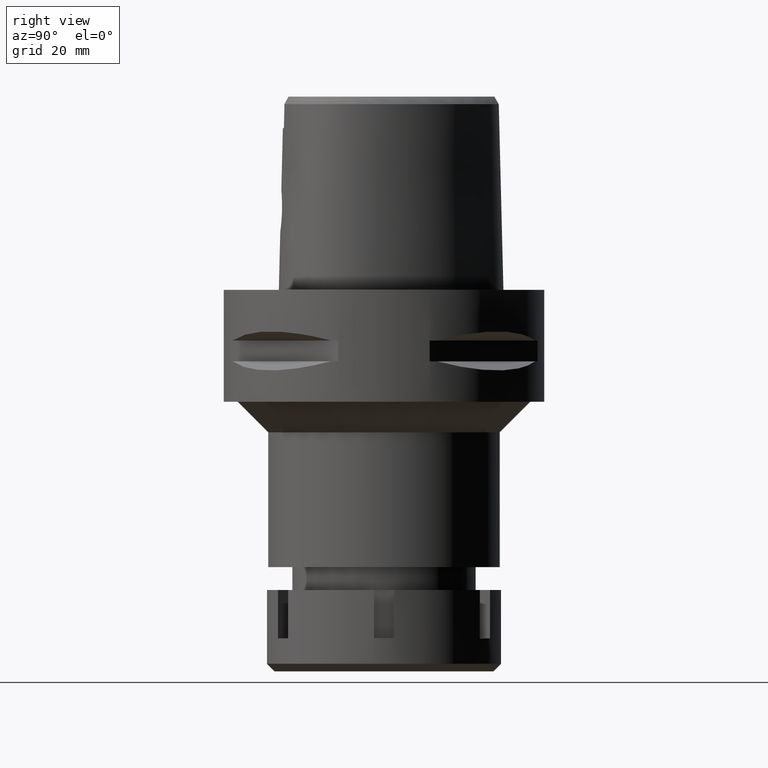
[diagram: clean part render]
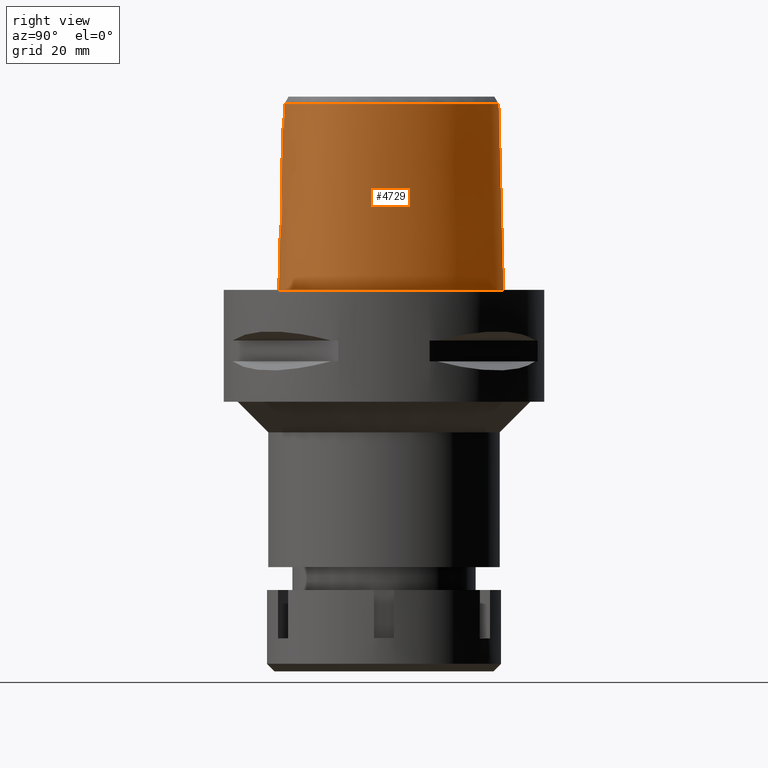
[diagram: same view with one face highlighted and labeled with its STEP entity id]
A machine part, right view. The second image highlights one B-rep face of the part: STEP entity #4729.
In plain terms, the highlighted face is a freeform B-spline surface patch.
Its self-contained STEP definition (entity closure, byte-faithful):
#48 = CARTESIAN_POINT ( 'NONE',  ( 2.041042029990999821E-08, -19.88004246002000031, 31.80000004972000127 ) ) ;
#51 = CARTESIAN_POINT ( 'NONE',  ( 3.736696120837999402, -19.67778323291999953, 31.80000004972999861 ) ) ;
#109 = CARTESIAN_POINT ( 'NONE',  ( -0.6718836835783000838, -20.05378850219000242, 24.59140259457000255 ) ) ;
#115 = CARTESIAN_POINT ( 'NONE',  ( 3.756125069740432476, -20.04745855932932841, 17.01462778956096145 ) ) ;
#136 = CARTESIAN_POINT ( 'NONE',  ( 11.13012655519999861, -18.61140115944000328, 11.93048244686999837 ) ) ;
#150 = CARTESIAN_POINT ( 'NONE',  ( 3.724651210502455179, -20.12894159340316591, 13.90953409638577121 ) ) ;
#175 = CARTESIAN_POINT ( 'NONE',  ( 3.923914256813788803, -20.09322795306330534, 14.46278330345411156 ) ) ;
#194 = CARTESIAN_POINT ( 'NONE',  ( 18.58171406625000088, -14.18198046587000150, -0.7304377008286999651 ) ) ;
#203 = CARTESIAN_POINT ( 'NONE',  ( 0.2513650938392851253, -20.38876923348000858, 11.44999999999999929 ) ) ;
#204 = CARTESIAN_POINT ( 'NONE',  ( 5.098437016805039690, 22.52602538943070343, 5.133892459372943473E-08 ) ) ;
#230 = CARTESIAN_POINT ( 'NONE',  ( 4.049385880667933257, -20.05442340995130834, 15.42296868718057823 ) ) ;
#252 = CARTESIAN_POINT ( 'NONE',  ( 21.68301101393999630, -0.3332744031559999875, 11.93048244686999837 ) ) ;
#276 = CARTESIAN_POINT ( 'NONE',  ( 21.05621900886999853, -0.4440251772015000320, 37.25232274225999873 ) ) ;
#282 = CARTESIAN_POINT ( 'NONE',  ( 2.297767253145089228, -20.12839387099592159, 18.84582622678342645 ) ) ;
#283 = CARTESIAN_POINT ( 'NONE',  ( 16.95889172514020871, -15.67838867086465626, 5.133892459372943473E-08 ) ) ;
#293 = CARTESIAN_POINT ( 'NONE',  ( 21.32871516740507545, -4.105831245034452515, 36.52186680739941949 ) ) ;
#297 = CARTESIAN_POINT ( 'NONE',  ( 20.65947747483999919, -8.729764350252001037, 37.25232274225999873 ) ) ;
#309 = CARTESIAN_POINT ( 'NONE',  ( 2.887537322029796183, -20.09730689105645141, 18.33983332488716655 ) ) ;
#331 = CARTESIAN_POINT ( 'NONE',  ( 4.868968416980999692, 21.95285536443999774, 24.59140259457000255 ) ) ;
#334 = B_SPLINE_SURFACE_WITH_KNOTS ( 'NONE', 3, 3, ( 
 ( #3956, #5184, #109, #612 ),
 ( #5235, #1467, #4775, #2301 ),
 ( #2324, #3980, #1833, #584 ),
 ( #3539, #3922, #2689, #5209 ),
 ( #2637, #136, #3518, #4719 ),
 ( #3128, #941, #2276, #3161 ),
 ( #1436, #1799, #1050, #4801 ),
 ( #194, #4310, #2754, #1023 ),
 ( #2728, #1885, #3566, #637 ),
 ( #4005, #3458, #1355, #3046 ),
 ( #2215, #3269, #1187, #1912 ),
 ( #3684, #5353, #3602, #297 ),
 ( #4082, #4478, #2406, #4936 ),
 ( #2354, #4961, #4884, #3189 ),
 ( #2778, #252, #4861, #276 ),
 ( #5273, #2886, #4554, #4444 ),
 ( #1987, #1939, #2428, #2809 ),
 ( #2861, #1549, #1104, #2836 ),
 ( #2383, #5296, #1078, #1164 ),
 ( #4527, #4115, #663, #1583 ),
 ( #744, #2020, #331, #3710 ),
 ( #5378, #3294, #776, #1607 ),
 ( #4502, #4912, #2467, #696 ),
 ( #4144, #1501, #4035, #4059 ),
 ( #3630, #3241, #1524, #3213 ) ),
 .UNSPECIFIED., .F., .F., .F.,
 ( 4, 1, 1, 1, 1, 1, 1, 1, 1, 1, 1, 1, 1, 1, 1, 1, 1, 1, 1, 1, 1, 1, 4 ),
 ( 4, 4 ),
 ( -0.008985960173607998938, 0.0000000000000000000, 0.08333333333346000515, 0.1666666666668000230, 0.2083333333334000115, 0.2500000000000000000, 0.2916666666666999919, 0.3125000000000000000, 0.3333333333333000081, 0.3541666666666999919, 0.3750000000000000000, 0.4166666666666999919, 0.4583333333332000326, 0.4999999999998999689, 0.5833333333332000326, 0.6666666666664999852, 0.7499999999998000488, 0.8333333333329999704, 0.8749999999997000177, 0.9166666666664000651, 0.9583333333329999704, 1.000000000000000000, 1.011710456763000199 ),
 ( 6.440578730059999579E-10, 0.9999999671531000223 ),
 .UNSPECIFIED. ) ;
#362 = CARTESIAN_POINT ( 'NONE',  ( 1.682408467858886869, -20.15487676905641834, 19.18421676572807044 ) ) ;
#529 = CARTESIAN_POINT ( 'NONE',  ( 3.671249151389730514, -19.60525176641679579, 34.94790639287000289 ) ) ;
#542 = CARTESIAN_POINT ( 'NONE',  ( 3.834132764128479476, -20.04413983231402341, 16.80766172510447021 ) ) ;
#564 = CARTESIAN_POINT ( 'NONE',  ( 3.733615223647793524, -20.12743432469296678, 13.93072684949311935 ) ) ;
#584 = CARTESIAN_POINT ( 'NONE',  ( 1.836480378976999894, -19.76356513466000209, 37.25232274225999873 ) ) ;
#595 = CARTESIAN_POINT ( 'NONE',  ( 2.711812544928954072, -20.25803428398867112, 12.49166772637832423 ) ) ;
#596 = CARTESIAN_POINT ( 'NONE',  ( 6.589911981476000638E-11, 23.47499999998000320, 1.563934167354999746E-13 ) ) ;
#605 = VERTEX_POINT ( 'NONE', #2716 ) ;
#612 = CARTESIAN_POINT ( 'NONE',  ( -0.6657939535483999860, -19.73734217107000433, 37.25232274225999873 ) ) ;
#619 = CARTESIAN_POINT ( 'NONE',  ( 2.841481942229118207, -20.24471504979698722, 12.61408493279074605 ) ) ;
#634 = ORIENTED_EDGE ( 'NONE', *, *, #2320, .T. ) ;
#637 = CARTESIAN_POINT ( 'NONE',  ( 18.89485276765000066, -12.27684372565000004, 37.25232274225999873 ) ) ;
#647 = CARTESIAN_POINT ( 'NONE',  ( 4.037288619571372195, -20.06218911274252648, 15.17308089514829206 ) ) ;
#648 = CARTESIAN_POINT ( 'NONE',  ( 10.74572890975553108, 19.17433593651194101, 5.133892459372943473E-08 ) ) ;
#663 = CARTESIAN_POINT ( 'NONE',  ( 7.259695429848000536, 20.78233563342000068, 24.59140259457000255 ) ) ;
#672 = EDGE_CURVE ( 'NONE', #877, #4105, #3674, .T. ) ;
#677 = CARTESIAN_POINT ( 'NONE',  ( 1.721395865009925696, -20.15335272691875801, 19.16627522895259617 ) ) ;
#696 = CARTESIAN_POINT ( 'NONE',  ( 0.5662264553953000323, 22.56729408688000049, 37.25232274225999873 ) ) ;
#704 = CARTESIAN_POINT ( 'NONE',  ( 1.850273374751005173, -20.14815026262819586, 19.10390060250088240 ) ) ;
#709 = B_SPLINE_CURVE_WITH_KNOTS ( 'NONE', 3,
 ( #4689, #5017, #5066, #48 ),
 .UNSPECIFIED., .F., .F.,
 ( 4, 4 ),
 ( 0.0000000000000000000, 1.000000000000000000 ),
 .UNSPECIFIED. ) ;
#717 = CARTESIAN_POINT ( 'NONE',  ( 18.90964962507554148, -12.28759713487851357, 36.52186680739941949 ) ) ;
#744 = CARTESIAN_POINT ( 'NONE',  ( 5.105252916302999822, 22.54305024289000059, -0.7304377008286999651 ) ) ;
#773 = VECTOR ( 'NONE', #1744, 1000.000000000000114 ) ;
#776 = CARTESIAN_POINT ( 'NONE',  ( 2.438150602943999878, 22.68791639090999723, 24.59140259457000255 ) ) ;
#877 = VERTEX_POINT ( 'NONE', #4328 ) ;
#941 = CARTESIAN_POINT ( 'NONE',  ( 14.52531263227000125, -16.95413748094000184, 11.93048244686999837 ) ) ;
#951 = CARTESIAN_POINT ( 'NONE',  ( 2.755157824600158900, -20.25369729349148429, 12.53110329712655435 ) ) ;
#975 = CARTESIAN_POINT ( 'NONE',  ( 0.5088336983802317359, -20.38532934153255383, 11.47346924504332222 ) ) ;
#1000 = CARTESIAN_POINT ( 'NONE',  ( 2.625054034762084765, -20.26654247664009034, 12.41494688798221091 ) ) ;
#1001 = CARTESIAN_POINT ( 'NONE',  ( 0.8548392422176173122, 23.47499999872449195, 5.133892459372943473E-08 ) ) ;
#1023 = CARTESIAN_POINT ( 'NONE',  ( 17.88993649464000057, -13.52675014675000043, 37.25232274225999873 ) ) ;
#1050 = CARTESIAN_POINT ( 'NONE',  ( 16.57726034767999934, -15.19304462892000096, 24.59140259457000255 ) ) ;
#1059 = CARTESIAN_POINT ( 'NONE',  ( 1.219914642302581287, -20.36297004387411391, 11.63750816716895642 ) ) ;
#1060 = CARTESIAN_POINT ( 'NONE',  ( 20.74942740758246984, 4.657187499561644906, 5.133892459372943473E-08 ) ) ;
#1078 = CARTESIAN_POINT ( 'NONE',  ( 10.34823237111999994, 18.70095498303999904, 24.59140259457000255 ) ) ;
#1086 = CARTESIAN_POINT ( 'NONE',  ( 3.275683108857316839, -20.07467505300561328, 17.88618377728968412 ) ) ;
#1087 = CARTESIAN_POINT ( 'NONE',  ( 21.97832647659170746, -0.2810937502245363095, 5.133892459372943473E-08 ) ) ;
#1104 = CARTESIAN_POINT ( 'NONE',  ( 13.93560865100999990, 15.24203790339999998, 24.59140259457000255 ) ) ;
#1121 = CARTESIAN_POINT ( 'NONE',  ( 2.905045300906295314, -20.09630101413479863, 18.32194731706497848 ) ) ;
#1136 = CARTESIAN_POINT ( 'NONE',  ( 0.7901461619530777414, 22.56201467849585640, 36.52186680739941949 ) ) ;
#1147 = CARTESIAN_POINT ( 'NONE',  ( 1.557547252386892289, -20.15944608752165834, 19.23852208297606481 ) ) ;
#1164 = CARTESIAN_POINT ( 'NONE',  ( 10.14358068742999919, 18.45723409560000050, 37.25232274225999873 ) ) ;
#1181 = CARTESIAN_POINT ( 'NONE',  ( 21.07429999882542404, -0.4408303635841513968, 36.52186680739941949 ) ) ;
#1187 = CARTESIAN_POINT ( 'NONE',  ( 20.36913770872000029, -10.35391841985999939, 24.59140259457000255 ) ) ;
#1197 = CARTESIAN_POINT ( 'NONE',  ( 0.4959045370077673764, -20.18628283969000492, 19.55000000000000071 ) ) ;
#1319 = VERTEX_POINT ( 'NONE', #3219 ) ;
#1349 = ORIENTED_EDGE ( 'NONE', *, *, #3805, .T. ) ;
#1355 = CARTESIAN_POINT ( 'NONE',  ( 19.81622823152000024, -11.44090470262000103, 24.59140259457000255 ) ) ;
#1396 = CARTESIAN_POINT ( 'NONE',  ( 1.026284908630525017, -20.37070980075587912, 11.57987514751378022 ) ) ;
#1419 = CARTESIAN_POINT ( 'NONE',  ( 3.544951685465134616, -20.15795908864563657, 13.53703058126424175 ) ) ;
#1436 = CARTESIAN_POINT ( 'NONE',  ( 16.97022731142999774, -15.69280483157000106, -0.7304377008286999651 ) ) ;
#1443 = CARTESIAN_POINT ( 'NONE',  ( 3.597776363771562291, -20.14975664647577247, 13.63784956183695485 ) ) ;
#1467 = CARTESIAN_POINT ( 'NONE',  ( -0.4520500670016999734, -20.37458447015999852, 11.93048244686999837 ) ) ;
#1483 = CARTESIAN_POINT ( 'NONE',  ( 4.047733528286863169, -20.05618573902189183, 15.36102835652594933 ) ) ;
#1501 = CARTESIAN_POINT ( 'NONE',  ( -0.4685451964167999805, 23.16976073745999898, 11.93048244686999837 ) ) ;
#1507 = CARTESIAN_POINT ( 'NONE',  ( 4.027814664727853433, -20.04259081693787792, 15.99899074095372598 ) ) ;
#1524 = CARTESIAN_POINT ( 'NONE',  ( -0.6834384068752999974, 22.83968691451999788, 24.59140259457000255 ) ) ;
#1531 = CARTESIAN_POINT ( 'NONE',  ( 2.583846531388557466, -20.11473364791429219, 18.64711139484315794 ) ) ;
#1532 = CARTESIAN_POINT ( 'NONE',  ( 18.06826688415234727, 10.43171874935659282, 5.133892459372943473E-08 ) ) ;
#1549 = CARTESIAN_POINT ( 'NONE',  ( 14.17879758571999993, 15.44741195313000048, 11.93048244686999837 ) ) ;
#1578 = CARTESIAN_POINT ( 'NONE',  ( 2.376843874103966581, 22.39422497744399720, 36.52186680739941949 ) ) ;
#1583 = CARTESIAN_POINT ( 'NONE',  ( 7.099337724559000584, 20.50831381844000134, 37.25232274225999873 ) ) ;
#1607 = CARTESIAN_POINT ( 'NONE',  ( 2.373090301473000263, 22.37624339415000208, 37.25232274225999873 ) ) ;
#1616 = CARTESIAN_POINT ( 'NONE',  ( 2.894554313917291122, -20.09690386000385232, 18.33268078382254629 ) ) ;
#1661 = CARTESIAN_POINT ( 'NONE',  ( 3.637738219117000238, -19.56971420299000286, 36.52185956443999970 ) ) ;
#1675 = CARTESIAN_POINT ( 'NONE',  ( -1.479165636536000032E-11, 22.56201468012000078, 36.52186680743999858 ) ) ;
#1744 = DIRECTION ( 'NONE',  ( -1.018537051611978047E-12, -0.02499051295360945474, -0.9996876883618780463 ) ) ;
#1799 = CARTESIAN_POINT ( 'NONE',  ( 16.77374382954999987, -15.44292473024000145, 11.93048244686999837 ) ) ;
#1806 = CARTESIAN_POINT ( 'NONE',  ( -1.661817726879000115E-12, -20.38876923348000147, 11.44999999999999929 ) ) ;
#1833 = CARTESIAN_POINT ( 'NONE',  ( 1.853272120416999957, -20.08023982175000199, 24.59140259457000255 ) ) ;
#1841 = CARTESIAN_POINT ( 'NONE',  ( 3.734182928955680492, -20.12733899257112569, 13.93207690736386262 ) ) ;
#1866 = CARTESIAN_POINT ( 'NONE',  ( 3.771924749575209290, -20.04673734607103697, 16.97498912667927584 ) ) ;
#1885 = CARTESIAN_POINT ( 'NONE',  ( 19.40779768701000307, -12.64961927324999991, 11.93048244686999837 ) ) ;
#1893 = CARTESIAN_POINT ( 'NONE',  ( 1.508548257805977011, -20.34919367973690640, 11.74142899467713974 ) ) ;
#1912 = CARTESIAN_POINT ( 'NONE',  ( 20.07948493349999808, -10.22500064467999970, 37.25232274225999873 ) ) ;
#1923 = CARTESIAN_POINT ( 'NONE',  ( 4.049847950762889504, -20.05362044738917504, 15.45260355635274330 ) ) ;
#1924 = CARTESIAN_POINT ( 'NONE',  ( 22.24453907726493895, -4.100468750007731700, 5.133892459372943473E-08 ) ) ;
#1939 = CARTESIAN_POINT ( 'NONE',  ( 17.80867307855000092, 10.28184208416000089, 11.93048244686999837 ) ) ;
#1946 = CARTESIAN_POINT ( 'NONE',  ( 1.559206937745068355, -20.15938941025294895, 19.23783019057918864 ) ) ;
#1968 = CARTESIAN_POINT ( 'NONE',  ( 0.0000000000000000000, -20.18628283968999781, 19.55000000000000071 ) ) ;
#1969 = CARTESIAN_POINT ( 'NONE',  ( 21.55524825886109141, -8.996025390257862853, 5.133892459372943473E-08 ) ) ;
#1981 = CARTESIAN_POINT ( 'NONE',  ( 4.467522181836776518, -19.48130276147466233, 36.52186680739941949 ) ) ;
#1987 = CARTESIAN_POINT ( 'NONE',  ( 18.08416038364000045, 10.44089487240000125, -0.7304377008286999651 ) ) ;
#2005 = ORIENTED_EDGE ( 'NONE', *, *, #672, .F. ) ;
#2020 = CARTESIAN_POINT ( 'NONE',  ( 4.987110666642000645, 22.24795280366999961, 11.93048244686999837 ) ) ;
#2027 = CARTESIAN_POINT ( 'NONE',  ( 1.630204615553382030, -20.15684766332410049, 19.20746487088241494 ) ) ;
#2039 = ORIENTED_EDGE ( 'NONE', *, *, #2740, .T. ) ;
#2050 = CARTESIAN_POINT ( 'NONE',  ( 3.752145809978453261, -20.04764366482260485, 17.02444873848520146 ) ) ;
#2215 = CARTESIAN_POINT ( 'NONE',  ( 20.94844325915000027, -10.61175397020000055, -0.7304377008286999651 ) ) ;
#2223 = CARTESIAN_POINT ( 'NONE',  ( 3.729962682284081676, -20.12804796780253369, 13.92205712544189211 ) ) ;
#2248 = CARTESIAN_POINT ( 'NONE',  ( 3.734333138693371801, -20.12731381197719571, 13.93243600819205064 ) ) ;
#2276 = CARTESIAN_POINT ( 'NONE',  ( 14.36818029308999911, -16.67825723111999991, 24.59140259457000255 ) ) ;
#2284 = CARTESIAN_POINT ( 'NONE',  ( 3.732532274748376899, -20.12761616597926917, 13.92815111045840837 ) ) ;
#2285 = CARTESIAN_POINT ( 'NONE',  ( 14.40795638859523642, 15.64093749916761666, 5.133892459372943473E-08 ) ) ;
#2301 = CARTESIAN_POINT ( 'NONE',  ( -0.4439347110420999720, -19.74161829701999693, 37.25232274225999873 ) ) ;
#2308 = CARTESIAN_POINT ( 'NONE',  ( 3.146977187969050238, -20.21214664850908349, 12.91782310681126944 ) ) ;
#2309 = CARTESIAN_POINT ( 'NONE',  ( 20.34961798445548453, -11.74885742122440035, 5.133892459372943473E-08 ) ) ;
#2320 = EDGE_CURVE ( 'NONE', #877, #3575, #2729, .T. ) ;
#2324 = CARTESIAN_POINT ( 'NONE',  ( 1.886855603297000084, -20.71358919592000092, -0.7304377008286999651 ) ) ;
#2327 = CARTESIAN_POINT ( 'NONE',  ( 6.589911981476000638E-11, 23.47499999998000320, 1.563934167354999746E-13 ) ) ;
#2333 = CARTESIAN_POINT ( 'NONE',  ( 4.044176424623040944, -20.05897250992953929, 15.26767728055138562 ) ) ;
#2354 = CARTESIAN_POINT ( 'NONE',  ( 22.26285556591999892, -4.100361500045999641, -0.7304377008286999651 ) ) ;
#2368 = CARTESIAN_POINT ( 'NONE',  ( 20.93173252094357295, -10.60431640572513423, 5.133892459372943473E-08 ) ) ;
#2383 = CARTESIAN_POINT ( 'NONE',  ( 10.75753573849000055, 19.18839675793000055, -0.7304377008286999651 ) ) ;
#2390 = CARTESIAN_POINT ( 'NONE',  ( 2.976801586316417225, -20.09216442783355205, 18.24660956151145896 ) ) ;
#2401 = CARTESIAN_POINT ( 'NONE',  ( 4.757642236485272846, 21.67478320247679591, 36.52186680739941949 ) ) ;
#2406 = CARTESIAN_POINT ( 'NONE',  ( 21.44619294638000184, -6.759806552775999400, 24.59140259457000255 ) ) ;
#2428 = CARTESIAN_POINT ( 'NONE',  ( 17.53318577346000140, 10.12278929592000054, 24.59140259457000255 ) ) ;
#2446 = CARTESIAN_POINT ( 'NONE',  ( 3.355528582519450520, -20.06993180122963949, 17.77165886435511055 ) ) ;
#2462 = CARTESIAN_POINT ( 'NONE',  ( 20.67704204634065590, -8.734985285292969692, 36.52186680739941949 ) ) ;
#2467 = CARTESIAN_POINT ( 'NONE',  ( 0.5826623282862999353, 22.88447438393999889, 24.59140259457000255 ) ) ;
#2474 = CARTESIAN_POINT ( 'NONE',  ( 1.567636234854285826, -20.15909966307800971, 19.23430590123704675 ) ) ;
#2582 = CARTESIAN_POINT ( 'NONE',  ( 0.0000000000000000000, -20.18628283968999781, 19.55000000000000071 ) ) ;
#2630 = EDGE_LOOP ( 'NONE', ( #2005, #634, #3157, #4713, #1349, #2790, #2039, #5398 ) ) ;
#2635 = B_SPLINE_CURVE_WITH_KNOTS ( 'NONE', 3,
 ( #1806, #203, #975, #4844, #1396, #1059, #5166, #5280, #3936, #1893, #4427, #4402, #3524, #3171, #3549, #4373, #4782, #1000, #595, #951, #2670, #2737, #619, #3576, #4760, #2308, #2762, #1419, #1443, #3989, #2646, #4341, #4014, #150, #2223, #2284, #564, #2248, #1841, #3963, #175, #3497, #5252, #647, #2333, #1483, #230, #1923, #3612, #1507, #5217, #3196, #4317, #542, #3906, #1866, #4817, #115, #2050, #3661, #3694, #2446, #1086, #5385, #4454, #5330, #2390, #4486, #1121, #1616, #309, #2844, #1531, #282, #4969, #704, #677, #362, #2027, #4065, #3300, #2474, #4152, #1946, #1147, #4943, #3222, #1197, #1968 ),
 .UNSPECIFIED., .F., .F.,
 ( 4, 2, 2, 1, 1, 1, 2, 2, 2, 2, 2, 1, 1, 1, 2, 2, 2, 2, 2, 1, 1, 1, 1, 2, 2, 2, 2, 1, 2, 2, 2, 2, 1, 1, 1, 2, 2, 2, 2, 2, 1, 1, 1, 2, 2, 2, 2, 2, 1, 1, 1, 1, 2, 2, 4 ),
 ( 0.0000000000000000000, 0.06250000000000002776, 0.09375000000000008327, 0.1093750000000001804, 0.1171875000000001388, 0.1210937500000001943, 0.1230468750000002359, 0.1250000000000002776, 0.1875000000000045519, 0.2187500000000067724, 0.2343750000000078826, 0.2421875000000085487, 0.2460937500000087430, 0.2480468750000087985, 0.2490234375000088540, 0.2500000000000089373, 0.3125000000000145994, 0.3437500000000172640, 0.3593750000000186517, 0.3671875000000193734, 0.3710937500000196509, 0.3730468750000194289, 0.3740234375000197065, 0.3745117187500194289, 0.3750000000000191513, 0.4375000000000066058, 0.4687500000000003331, 0.4843749999999973910, 0.4921874999999957256, 0.4999999999999940603, 0.5624999999999826805, 0.5937499999999770184, 0.6093749999999737987, 0.6171874999999722444, 0.6210937499999714673, 0.6230468749999714673, 0.6249999999999714673, 0.6874999999999700240, 0.7187499999999695799, 0.7343749999999696909, 0.7421874999999698019, 0.7460937499999700240, 0.7480468749999701350, 0.7490234374999704681, 0.7499999999999708011, 0.8124999999999867883, 0.8437499999999950040, 0.8593749999999994449, 0.8671875000000015543, 0.8710937500000023315, 0.8730468750000027756, 0.8740234375000029976, 0.8745117187500027756, 0.8750000000000026645, 1.000000000000000000 ),
 .UNSPECIFIED. ) ;
#2637 = CARTESIAN_POINT ( 'NONE',  ( 11.23887130271000068, -18.91049776063999843, -0.7304377008286999651 ) ) ;
#2646 = CARTESIAN_POINT ( 'NONE',  ( 3.678695920905383776, -20.13664559938962029, 13.80554397062563510 ) ) ;
#2670 = CARTESIAN_POINT ( 'NONE',  ( 2.805565869585526340, -20.24849240644470783, 12.57904116348529122 ) ) ;
#2689 = CARTESIAN_POINT ( 'NONE',  ( 6.232237580706000202, -19.68961177691000231, 24.59140259457000255 ) ) ;
#2702 = CARTESIAN_POINT ( 'NONE',  ( 3.637738219117000238, -19.56971420299000286, 36.52185956443999970 ) ) ;
#2716 = CARTESIAN_POINT ( 'NONE',  ( -1.661817726879000115E-12, -20.38876923348000147, 11.44999999999999929 ) ) ;
#2728 = CARTESIAN_POINT ( 'NONE',  ( 19.66427014668999718, -12.83600704704999984, -0.7304377008286999651 ) ) ;
#2729 = B_SPLINE_CURVE_WITH_KNOTS ( 'NONE', 3,
 ( #4078, #1136, #1578, #2401, #3264, #2909, #5315, #4548, #4954, #1181, #293, #4931, #2462, #5347, #3679, #717, #2832, #4907, #5397, #4108, #2856, #1981, #4473 ),
 .UNSPECIFIED., .F., .F.,
 ( 4, 1, 1, 1, 1, 1, 1, 1, 1, 1, 1, 1, 1, 1, 1, 1, 1, 1, 1, 1, 4 ),
 ( 0.0000000000000000000, 0.04382683003322353915, 0.08765366006602620663, 0.1314804900989341996, 0.1753073201318422203, 0.2629609801974476802, 0.3506146402631584724, 0.4382683003288690982, 0.5259219603945799459, 0.5697487904274878279, 0.6135756204601853225, 0.6574024504930933155, 0.6793158655094947429, 0.7012292805260014195, 0.7231426955424027359, 0.7450561105588040522, 0.7888829405917120452, 0.8327097706245147890, 0.8765366006573176438, 0.9641902607230703470, 1.000000000000000000 ),
 .UNSPECIFIED. ) ;
#2737 = CARTESIAN_POINT ( 'NONE',  ( 2.830716186925087197, -20.24585369672130142, 12.60349817413593065 ) ) ;
#2740 = EDGE_CURVE ( 'NONE', #605, #5313, #4226, .T. ) ;
#2754 = CARTESIAN_POINT ( 'NONE',  ( 18.12052901851000186, -13.74516025311999989, 24.59140259457000255 ) ) ;
#2762 = CARTESIAN_POINT ( 'NONE',  ( 3.341890037418641324, -20.18695819815992110, 13.19695928336088642 ) ) ;
#2778 = CARTESIAN_POINT ( 'NONE',  ( 21.99640701646999830, -0.2778990161332999809, -0.7304377008286999651 ) ) ;
#2790 = ORIENTED_EDGE ( 'NONE', *, *, #3591, .F. ) ;
#2809 = CARTESIAN_POINT ( 'NONE',  ( 17.25769846836999832, 9.963736507676001608, 37.25232274225999873 ) ) ;
#2832 = CARTESIAN_POINT ( 'NONE',  ( 17.90324024157390426, -13.53935104436017589, 36.52186680739941949 ) ) ;
#2836 = CARTESIAN_POINT ( 'NONE',  ( 13.69241971630000165, 15.03666385365999858, 37.25232274225999873 ) ) ;
#2844 = CARTESIAN_POINT ( 'NONE',  ( 2.885120786806667947, -20.09744565367676472, 18.34229159665168041 ) ) ;
#2856 = CARTESIAN_POINT ( 'NONE',  ( 7.300578979385020872, -19.07170738130598409, 36.52186680739941949 ) ) ;
#2861 = CARTESIAN_POINT ( 'NONE',  ( 14.42198652042999818, 15.65278600286999833, -0.7304377008286999651 ) ) ;
#2886 = CARTESIAN_POINT ( 'NONE',  ( 20.46725044168999830, 4.555493648461999889, 11.93048244686999837 ) ) ;
#2909 = CARTESIAN_POINT ( 'NONE',  ( 10.15538781007090918, 18.47129526703172075, 36.52186680739941949 ) ) ;
#2925 = CARTESIAN_POINT ( 'NONE',  ( 0.0000000000000000000, -20.18628283968999781, 19.55000000000000071 ) ) ;
#2929 = EDGE_CURVE ( 'NONE', #4841, #3575, #3227, .T. ) ;
#2934 = CARTESIAN_POINT ( 'NONE',  ( 3.736696120837999402, -19.67778323291999953, 31.80000004972999861 ) ) ;
#3046 = CARTESIAN_POINT ( 'NONE',  ( 19.54161172449000006, -11.28235478775999923, 37.25232274225999873 ) ) ;
#3081 = FACE_OUTER_BOUND ( 'NONE', #2630, .T. ) ;
#3128 = CARTESIAN_POINT ( 'NONE',  ( 14.68244497146000072, -17.23001773076000021, -0.7304377008286999651 ) ) ;
#3157 = ORIENTED_EDGE ( 'NONE', *, *, #2929, .F. ) ;
#3161 = CARTESIAN_POINT ( 'NONE',  ( 14.21104795389999964, -16.40237698131000244, 37.25232274225999873 ) ) ;
#3171 = CARTESIAN_POINT ( 'NONE',  ( 1.943634177109568872, -20.32333441053194178, 11.93700115265083284 ) ) ;
#3189 = CARTESIAN_POINT ( 'NONE',  ( 21.31039822279999996, -4.105938497665999165, 37.25232274225999873 ) ) ;
#3196 = CARTESIAN_POINT ( 'NONE',  ( 3.922298745474660731, -20.04161990539563831, 16.51790891224319680 ) ) ;
#3197 = CARTESIAN_POINT ( 'NONE',  ( 19.64947365759156384, -12.82525390549806232, 5.133892459372943473E-08 ) ) ;
#3213 = CARTESIAN_POINT ( 'NONE',  ( -0.6642815279115000804, 22.52377637804000088, 37.25232274225999873 ) ) ;
#3219 = CARTESIAN_POINT ( 'NONE',  ( 2.041042029990999821E-08, -19.88004246002000031, 31.80000004972000127 ) ) ;
#3222 = CARTESIAN_POINT ( 'NONE',  ( 1.030807136769457344, -20.17735594286867595, 19.45770120352410260 ) ) ;
#3227 = B_SPLINE_CURVE_WITH_KNOTS ( 'NONE', 3,
 ( #51, #3429, #529, #1661 ),
 .UNSPECIFIED., .F., .F.,
 ( 4, 4 ),
 ( 0.0000000000000000000, 1.000000000000000000 ),
 .UNSPECIFIED. ) ;
#3241 = CARTESIAN_POINT ( 'NONE',  ( -0.7025952858392000566, 23.15559745100999578, 11.93048244686999837 ) ) ;
#3264 = CARTESIAN_POINT ( 'NONE',  ( 7.108589361577683619, 20.52412316394557124, 36.52186680739941949 ) ) ;
#3269 = CARTESIAN_POINT ( 'NONE',  ( 20.65879048393000161, -10.48283619503000175, 11.93048244686999837 ) ) ;
#3294 = CARTESIAN_POINT ( 'NONE',  ( 2.503210904416000027, 22.99958938766999950, 11.93048244686999837 ) ) ;
#3300 = CARTESIAN_POINT ( 'NONE',  ( 1.579844284323532078, -20.15867419586153275, 19.22916814255610518 ) ) ;
#3429 = CARTESIAN_POINT ( 'NONE',  ( 3.704239288984441103, -19.64128042389065598, 33.37395322129999897 ) ) ;
#3458 = CARTESIAN_POINT ( 'NONE',  ( 20.09084473856000130, -11.59945461747999929, 11.93048244686999837 ) ) ;
#3497 = CARTESIAN_POINT ( 'NONE',  ( 4.000259687173843837, -20.07463044974041111, 14.85344928445107016 ) ) ;
#3518 = CARTESIAN_POINT ( 'NONE',  ( 11.02138180768000097, -18.31230455823999748, 24.59140259457000255 ) ) ;
#3524 = CARTESIAN_POINT ( 'NONE',  ( 1.731224800536398600, -20.33718087931255880, 11.83285799100799096 ) ) ;
#3539 = CARTESIAN_POINT ( 'NONE',  ( 6.344715576791000622, -20.31619965019000063, -0.7304377008286999651 ) ) ;
#3545 = B_SPLINE_CURVE_WITH_KNOTS ( 'NONE', 3,
 ( #3964, #4845, #4428, #4374, #4066, #283, #3550, #3197, #2309, #2368, #1969, #5218, #1924, #1087, #1060, #1532, #2285, #648, #3990, #204, #4893, #1001, #596 ),
 .UNSPECIFIED., .F., .F.,
 ( 4, 1, 1, 1, 1, 1, 1, 1, 1, 1, 1, 1, 1, 1, 1, 1, 1, 1, 1, 1, 4 ),
 ( 0.0000000000000000000, 0.08333333333346000515, 0.1666666666668000230, 0.2083333333334000115, 0.2500000000000000000, 0.2916666666666999919, 0.3125000000000000000, 0.3333333333333000081, 0.3541666666666999919, 0.3750000000000000000, 0.4166666666666999919, 0.4583333333332000326, 0.4999999999998999689, 0.5833333333332000326, 0.6666666666664999852, 0.7499999999998000488, 0.8333333333329999704, 0.8749999999997000177, 0.9166666666664000651, 0.9583333333329999704, 1.000000000000000000 ),
 .UNSPECIFIED. ) ;
#3549 = CARTESIAN_POINT ( 'NONE',  ( 2.279301188943401613, -20.29725948038710115, 12.14965229562047533 ) ) ;
#3550 = CARTESIAN_POINT ( 'NONE',  ( 18.56841065047631645, -14.16937988192455045, 5.133892459372943473E-08 ) ) ;
#3566 = CARTESIAN_POINT ( 'NONE',  ( 19.15132522733000187, -12.46323149944999997, 24.59140259457000255 ) ) ;
#3575 = VERTEX_POINT ( 'NONE', #2702 ) ;
#3576 = CARTESIAN_POINT ( 'NONE',  ( 2.848656072139268414, -20.24395422488552754, 12.62116621080277845 ) ) ;
#3591 = EDGE_CURVE ( 'NONE', #605, #5251, #2635, .T. ) ;
#3602 = CARTESIAN_POINT ( 'NONE',  ( 20.96392244760999901, -8.820258298614000125, 24.59140259457000255 ) ) ;
#3612 = CARTESIAN_POINT ( 'NONE',  ( 4.050948068489438114, -20.04627564452905375, 15.73931143976857783 ) ) ;
#3630 = CARTESIAN_POINT ( 'NONE',  ( -0.7217521648029999737, 23.47150798749000344, -0.7304377008286999651 ) ) ;
#3661 = CARTESIAN_POINT ( 'NONE',  ( 3.671197993484472288, -20.05144012297616385, 17.22277455147500902 ) ) ;
#3674 = LINE ( 'NONE', #1675, #4987 ) ;
#3679 = CARTESIAN_POINT ( 'NONE',  ( 19.55745538000878625, -11.29150212657346231, 36.52186680739941949 ) ) ;
#3684 = CARTESIAN_POINT ( 'NONE',  ( 21.57281239314000132, -9.001246195337998302, -0.7304377008286999651 ) ) ;
#3694 = CARTESIAN_POINT ( 'NONE',  ( 3.567199012625003718, -20.05744357277719558, 17.43587588981313630 ) ) ;
#3710 = CARTESIAN_POINT ( 'NONE',  ( 4.750826167319999627, 21.65775792522000032, 37.25232274225999873 ) ) ;
#3805 = EDGE_CURVE ( 'NONE', #1319, #5251, #4145, .T. ) ;
#3824 = CARTESIAN_POINT ( 'NONE',  ( -1.332771036187000036E-11, -20.67499999999999716, 1.592799965995999763E-13 ) ) ;
#3906 = CARTESIAN_POINT ( 'NONE',  ( 3.793408095043566686, -20.04579374564252348, 16.91936042821695452 ) ) ;
#3922 = CARTESIAN_POINT ( 'NONE',  ( 6.288476578748999124, -20.00290571355000324, 11.93048244686999837 ) ) ;
#3936 = CARTESIAN_POINT ( 'NONE',  ( 1.484628933487066149, -20.35045340579187823, 11.73185819435325605 ) ) ;
#3956 = CARTESIAN_POINT ( 'NONE',  ( -0.6840631436381999775, -20.68668116444000304, -0.7304377008286999651 ) ) ;
#3963 = CARTESIAN_POINT ( 'NONE',  ( 3.845388264044705462, -20.10868287104974428, 14.19733377287531617 ) ) ;
#3964 = CARTESIAN_POINT ( 'NONE',  ( -1.332771036187000036E-11, -20.67499999999999716, 1.592799965995999763E-13 ) ) ;
#3980 = CARTESIAN_POINT ( 'NONE',  ( 1.870063861857000020, -20.39691450883999835, 11.93048244686999837 ) ) ;
#3989 = CARTESIAN_POINT ( 'NONE',  ( 3.660536076865998467, -20.13964887472335974, 13.76643419955326841 ) ) ;
#3990 = CARTESIAN_POINT ( 'NONE',  ( 7.571159433700400676, 21.31457031138521074, 5.133892459372943473E-08 ) ) ;
#4005 = CARTESIAN_POINT ( 'NONE',  ( 20.36546124559000148, -11.75800453233999932, -0.7304377008286999651 ) ) ;
#4014 = CARTESIAN_POINT ( 'NONE',  ( 3.713327282125037598, -20.13084893242097451, 13.88315320711464551 ) ) ;
#4035 = CARTESIAN_POINT ( 'NONE',  ( -0.4558512674015000044, 22.85344971153000060, 24.59140259457000255 ) ) ;
#4059 = CARTESIAN_POINT ( 'NONE',  ( -0.4431573383862000282, 22.53713868559000133, 37.25232274225999873 ) ) ;
#4065 = CARTESIAN_POINT ( 'NONE',  ( 1.605670341284474167, -20.15775431822325814, 19.21817100152025759 ) ) ;
#4066 = CARTESIAN_POINT ( 'NONE',  ( 14.67337964356189239, -17.21410156138248482, 5.133892459372943473E-08 ) ) ;
#4074 = DIRECTION ( 'NONE',  ( 2.208692560459959975E-12, 0.02499051290944955331, -0.9996876883629820520 ) ) ;
#4078 = CARTESIAN_POINT ( 'NONE',  ( -1.479165636536000032E-11, 22.56201468012000078, 36.52186680743999858 ) ) ;
#4082 = CARTESIAN_POINT ( 'NONE',  ( 22.07548129164000272, -6.850245535560999244, -0.7304377008286999651 ) ) ;
#4105 = VERTEX_POINT ( 'NONE', #2327 ) ;
#4108 = CARTESIAN_POINT ( 'NONE',  ( 10.91891095221553343, -18.03046396093033366, 36.52186680739941949 ) ) ;
#4115 = CARTESIAN_POINT ( 'NONE',  ( 7.420053135135999511, 21.05635744838999912, 11.93048244686999837 ) ) ;
#4144 = CARTESIAN_POINT ( 'NONE',  ( -0.4812391254321000122, 23.48607176340000180, -0.7304377008286999651 ) ) ;
#4145 = B_SPLINE_CURVE_WITH_KNOTS ( 'NONE', 3,
 ( #4672, #4205, #5051, #2582 ),
 .UNSPECIFIED., .F., .F.,
 ( 4, 4 ),
 ( 0.0000000000000000000, 1.000000000000000000 ),
 .UNSPECIFIED. ) ;
#4152 = CARTESIAN_POINT ( 'NONE',  ( 1.561709138421131460, -20.15930377878557067, 19.23678609591732780 ) ) ;
#4205 = CARTESIAN_POINT ( 'NONE',  ( 6.819050439105700543E-09, -19.98212988583619065, 27.71666688228206610 ) ) ;
#4226 = LINE ( 'NONE', #5118, #773 ) ;
#4310 = CARTESIAN_POINT ( 'NONE',  ( 18.35112154237999960, -13.96357035949999847, 11.93048244686999837 ) ) ;
#4317 = CARTESIAN_POINT ( 'NONE',  ( 3.865208542714519080, -20.04312211379567543, 16.71127181999779054 ) ) ;
#4328 = CARTESIAN_POINT ( 'NONE',  ( -1.479165636536000032E-11, 22.56201468012000078, 36.52186680743999858 ) ) ;
#4341 = CARTESIAN_POINT ( 'NONE',  ( 3.702377620297625960, -20.13268965926458876, 13.85827189059468623 ) ) ;
#4373 = CARTESIAN_POINT ( 'NONE',  ( 2.393937941623188959, -20.28768363250983597, 12.22995431007439926 ) ) ;
#4374 = CARTESIAN_POINT ( 'NONE',  ( 11.23259756683577137, -18.89324218628103580, 5.133892459372943473E-08 ) ) ;
#4402 = CARTESIAN_POINT ( 'NONE',  ( 1.534443768000609332, -20.34781270669801856, 11.75193064432660783 ) ) ;
#4422 = EDGE_CURVE ( 'NONE', #5313, #4105, #3545, .T. ) ;
#4427 = CARTESIAN_POINT ( 'NONE',  ( 1.524484857645500568, -20.34834714382796861, 11.74786463903649292 ) ) ;
#4428 = CARTESIAN_POINT ( 'NONE',  ( 6.341471018983529717, -20.29812499872887699, 5.133892459372944135E-08 ) ) ;
#4444 = CARTESIAN_POINT ( 'NONE',  ( 19.86834422578000314, 4.339653637037000244, 37.25232274225999873 ) ) ;
#4454 = CARTESIAN_POINT ( 'NONE',  ( 3.092007656460634912, -20.08546770171414764, 18.11684746537030222 ) ) ;
#4473 = CARTESIAN_POINT ( 'NONE',  ( 3.637738219117000238, -19.56971420299000286, 36.52185956443999970 ) ) ;
#4478 = CARTESIAN_POINT ( 'NONE',  ( 21.76083711900999873, -6.805026044168000610, 11.93048244686999837 ) ) ;
#4486 = CARTESIAN_POINT ( 'NONE',  ( 2.929283419941957511, -20.09490627874255253, 18.29687162475248741 ) ) ;
#4502 = CARTESIAN_POINT ( 'NONE',  ( 0.6155340740681999323, 23.51883497808000101, -0.7304377008286999651 ) ) ;
#4527 = CARTESIAN_POINT ( 'NONE',  ( 7.580410840425000352, 21.33037926336000112, -0.7304377008286999651 ) ) ;
#4548 = CARTESIAN_POINT ( 'NONE',  ( 17.27359236349250082, 9.972912859139690056, 36.52186680739941949 ) ) ;
#4554 = CARTESIAN_POINT ( 'NONE',  ( 20.16779733373000028, 4.447573642750000111, 24.59140259457000255 ) ) ;
#4672 = CARTESIAN_POINT ( 'NONE',  ( 2.041042029990999821E-08, -19.88004246002000031, 31.80000004972000127 ) ) ;
#4689 = CARTESIAN_POINT ( 'NONE',  ( 3.736696120837999402, -19.67778323291999953, 31.80000004972999861 ) ) ;
#4713 = ORIENTED_EDGE ( 'NONE', *, *, #4833, .T. ) ;
#4719 = CARTESIAN_POINT ( 'NONE',  ( 10.91263706017000068, -18.01320795703000144, 37.25232274225999873 ) ) ;
#4729 = ADVANCED_FACE ( 'NONE', ( #3081 ), #334, .T. ) ;
#4760 = CARTESIAN_POINT ( 'NONE',  ( 2.851276316165478608, -20.24367587454718986, 12.62375861032173496 ) ) ;
#4775 = CARTESIAN_POINT ( 'NONE',  ( -0.4479923890219000282, -20.05810138358999950, 24.59140259457000255 ) ) ;
#4782 = CARTESIAN_POINT ( 'NONE',  ( 2.567126399678083981, -20.27199355395046254, 12.36666767343267104 ) ) ;
#4801 = CARTESIAN_POINT ( 'NONE',  ( 16.38077686580000147, -14.94316452758999958, 37.25232274225999873 ) ) ;
#4817 = CARTESIAN_POINT ( 'NONE',  ( 3.762477037508149547, -20.04716674134703780, 16.99877931086161098 ) ) ;
#4833 = EDGE_CURVE ( 'NONE', #4841, #1319, #709, .T. ) ;
#4841 = VERTEX_POINT ( 'NONE', #2934 ) ;
#4844 = CARTESIAN_POINT ( 'NONE',  ( 0.8967255837377422489, -20.37500966569018956, 11.54832647593769401 ) ) ;
#4845 = CARTESIAN_POINT ( 'NONE',  ( 2.113823672989667557, -20.67499999870904759, 5.133892459372943473E-08 ) ) ;
#4861 = CARTESIAN_POINT ( 'NONE',  ( 21.36961501140999786, -0.3886497901786999942, 24.59140259457000255 ) ) ;
#4884 = CARTESIAN_POINT ( 'NONE',  ( 21.62788400384000198, -4.104079498458999886, 24.59140259457000255 ) ) ;
#4893 = CARTESIAN_POINT ( 'NONE',  ( 2.564517726692166377, 23.29328124873773476, 5.133892459372943473E-08 ) ) ;
#4907 = CARTESIAN_POINT ( 'NONE',  ( 16.39211273426509052, -14.95758104715498682, 36.52186680739941949 ) ) ;
#4912 = CARTESIAN_POINT ( 'NONE',  ( 0.5990982011772000293, 23.20165468101000172, 11.93048244686999837 ) ) ;
#4931 = CARTESIAN_POINT ( 'NONE',  ( 21.14970177531591133, -6.717195943319384632, 36.52186680739941949 ) ) ;
#4936 = CARTESIAN_POINT ( 'NONE',  ( 21.13154877375000140, -6.714587061383999966, 37.25232274225999873 ) ) ;
#4943 = CARTESIAN_POINT ( 'NONE',  ( 1.557951388414173799, -20.15943240784460500, 19.23835423776016995 ) ) ;
#4954 = CARTESIAN_POINT ( 'NONE',  ( 19.88562079789032211, 4.345879946637223767, 36.52186680739941949 ) ) ;
#4961 = CARTESIAN_POINT ( 'NONE',  ( 21.94536978488000045, -4.102220499251999719, 11.93048244686999837 ) ) ;
#4969 = CARTESIAN_POINT ( 'NONE',  ( 1.952175288171961620, -20.14384150259771289, 19.05097993751234497 ) ) ;
#4987 = VECTOR ( 'NONE', #4074, 1000.000000000000114 ) ;
#5017 = CARTESIAN_POINT ( 'NONE',  ( 2.503154195450497888, -19.81241979350998861, 31.80000012137775656 ) ) ;
#5051 = CARTESIAN_POINT ( 'NONE',  ( 6.839024713208919302E-09, -20.08420636276385807, 23.63333344114127144 ) ) ;
#5066 = CARTESIAN_POINT ( 'NONE',  ( 1.251533272179826684, -19.88005341395612646, 31.80000012137775656 ) ) ;
#5118 = CARTESIAN_POINT ( 'NONE',  ( -1.661817726879000115E-12, -20.38876923348000147, 11.44999999999999929 ) ) ;
#5166 = CARTESIAN_POINT ( 'NONE',  ( 1.316550487631334976, -20.35877767556315376, 11.66890049693321885 ) ) ;
#5184 = CARTESIAN_POINT ( 'NONE',  ( -0.6779734136081999596, -20.37023483331000051, 11.93048244686999837 ) ) ;
#5209 = CARTESIAN_POINT ( 'NONE',  ( 6.175998582662999503, -19.37631784027000137, 37.25232274225999873 ) ) ;
#5217 = CARTESIAN_POINT ( 'NONE',  ( 3.953605944432725394, -20.04132940464452517, 16.38822616454638847 ) ) ;
#5218 = CARTESIAN_POINT ( 'NONE',  ( 22.05732874194318427, -6.847636718566505465, 5.133892459372943473E-08 ) ) ;
#5235 = CARTESIAN_POINT ( 'NONE',  ( -0.4561077449814999740, -20.69106755673000109, -0.7304377008286999651 ) ) ;
#5251 = VERTEX_POINT ( 'NONE', #2925 ) ;
#5252 = CARTESIAN_POINT ( 'NONE',  ( 4.018824241939421782, -20.06919542757557196, 14.98245414913244211 ) ) ;
#5273 = CARTESIAN_POINT ( 'NONE',  ( 20.76670354964000254, 4.663413654174999756, -0.7304377008286999651 ) ) ;
#5280 = CARTESIAN_POINT ( 'NONE',  ( 1.428720464823030500, -20.35332222192774765, 11.71010416620863204 ) ) ;
#5296 = CARTESIAN_POINT ( 'NONE',  ( 10.55288405480999891, 18.94467587048000112, 11.93048244686999837 ) ) ;
#5313 = VERTEX_POINT ( 'NONE', #3824 ) ;
#5315 = CARTESIAN_POINT ( 'NONE',  ( 13.70645019738503656, 15.04851265230566248, 36.52186680739941949 ) ) ;
#5330 = CARTESIAN_POINT ( 'NONE',  ( 3.015907650572368759, -20.08989590398384095, 18.20338242658629468 ) ) ;
#5347 = CARTESIAN_POINT ( 'NONE',  ( 20.09619608768469234, -10.23243839429777147, 36.52186680739941949 ) ) ;
#5353 = CARTESIAN_POINT ( 'NONE',  ( 21.26836742036999794, -8.910752246975999213, 11.93048244686999837 ) ) ;
#5378 = CARTESIAN_POINT ( 'NONE',  ( 2.568271205887000086, 23.31126238443000176, -0.7304377008286999651 ) ) ;
#5385 = CARTESIAN_POINT ( 'NONE',  ( 3.139923909409813696, -20.08266069410729671, 18.05905178831535451 ) ) ;
#5397 = CARTESIAN_POINT ( 'NONE',  ( 14.22011350746015346, -16.41829354688611176, 36.52186680739941949 ) ) ;
#5398 = ORIENTED_EDGE ( 'NONE', *, *, #4422, .T. ) ;